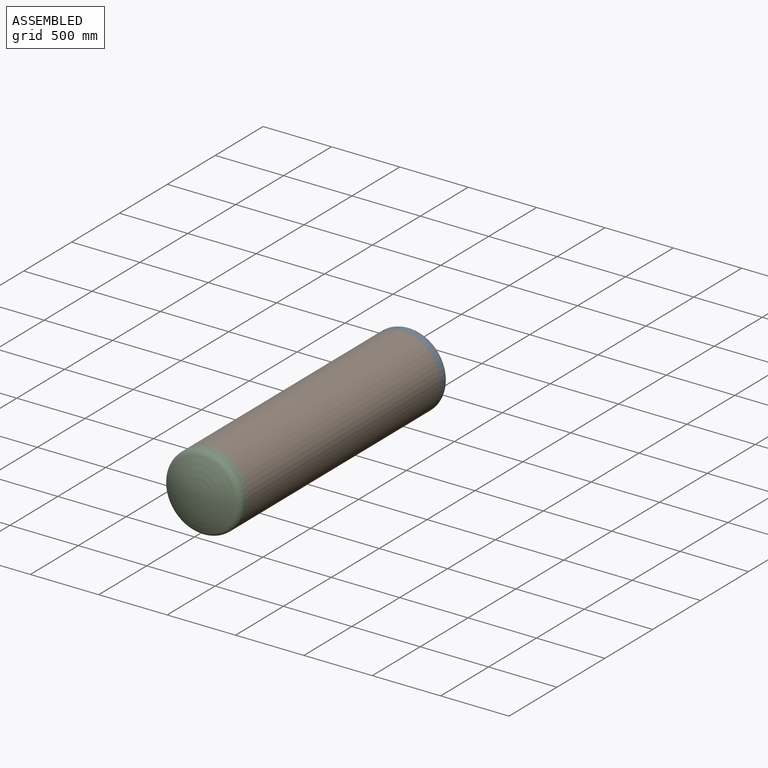
[diagram: assembled view]
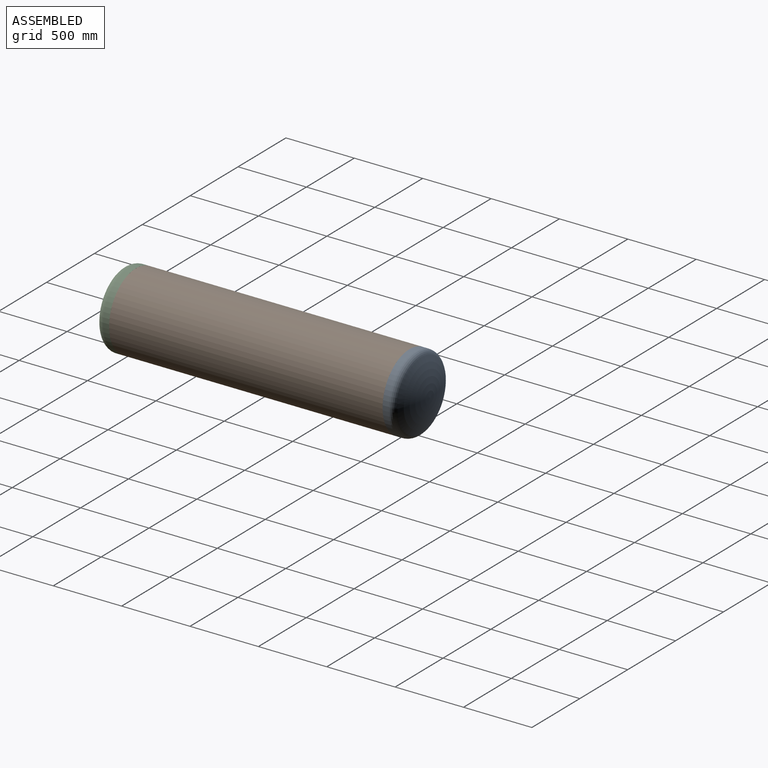
[diagram: assembled view, second angle]
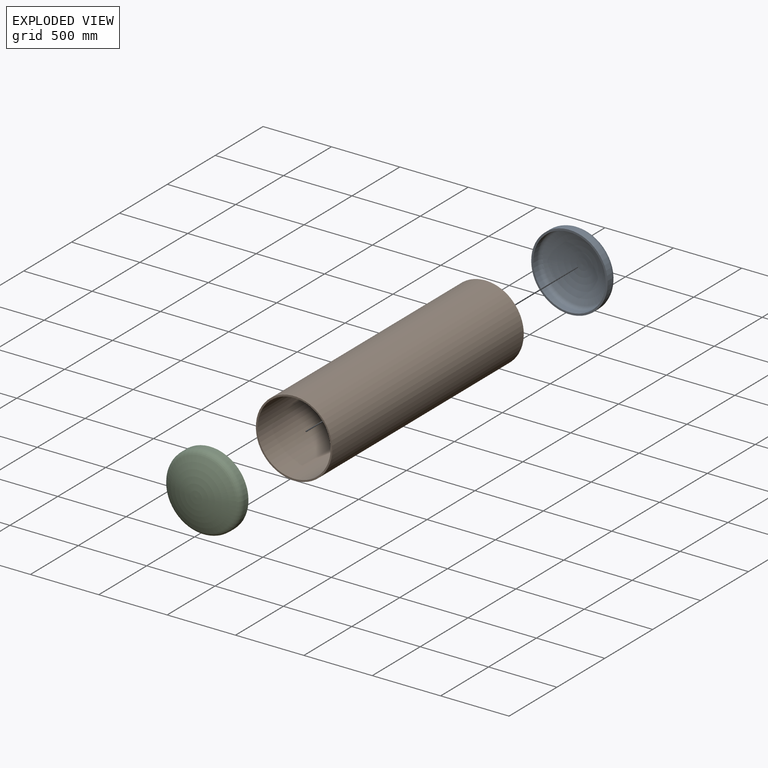
[diagram: exploded view]
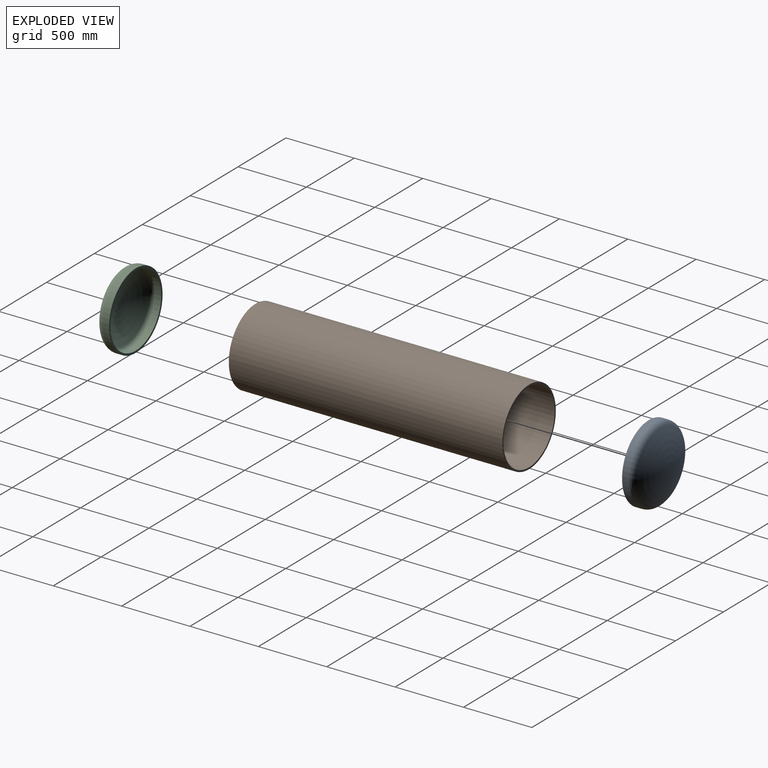
[diagram: exploded view, second angle]
ASSEMBLY  parts=3 mates=4
PART A: 7 faces, bbox 604.8x604.8x150 mm
  f0: sphere r=558.8mm, area 210730.9mm2, adj f6
  f1: sphere r=544.8mm, area 200304mm2, adj f2
  f2: torus R=229.4mm, axis (0,0,-1), area 64505.3mm2, adj f1,f3
  f3: cylinder r=265.4mm len=530.8mm, axis (0,0,-1), area 75625.3mm2, adj f2,f4
  f4: plane 558.8x558.8mm, normal (0,0,1), area 23961.6mm2, adj f3,f5
  f5: cylinder r=279.4mm len=558.8mm, axis (0,0,-1), area 79614.6mm2, adj f4,f6
  f6: torus R=229.4mm, axis (0,0,-1), area 93516.5mm2, adj f0,f5
PART B: 4 faces, bbox 558.8x2000x558.8 mm
  f0: cylinder r=267.4mm len=2000mm, axis (0,1,0), area 3360247.5mm2, adj f2,f3
  f1: cylinder r=279.4mm len=2000mm, axis (0,1,0), area 3511043.9mm2, adj f2,f3
  f2: plane 558.8x558.8mm, normal (0,-1,0), area 20613.9mm2, adj f0,f1
  f3: plane 558.8x558.8mm, normal (0,1,0), area 20613.9mm2, adj f0,f1
PART C: same geometry as A
PLACE A rot(axis=(0.23,0.69,-0.69),153.9deg) t=(-424.47,1631.3,371.84)mm
PLACE B t=(-424.47,556.3,371.84)mm fixed
PLACE C rot(axis=(-0.63,0.55,0.55),115.4deg) t=(-424.47,-518.7,371.84)mm
MATE planar B.f0 <-> C.f2  axis (0,-1,0) through (-424.47,-443.7,371.84)mm
MATE cylindrical B.f1 <-> A.f2  axis (0,1,0) through (-424.47,1556.3,371.84)mm
MATE cylindrical C.f2 <-> B.f0  axis (0,1,0) through (-424.47,-443.7,371.84)mm
MATE planar B.f0 <-> A.f2  axis (0,1,0) through (-424.47,1556.3,371.84)mm
